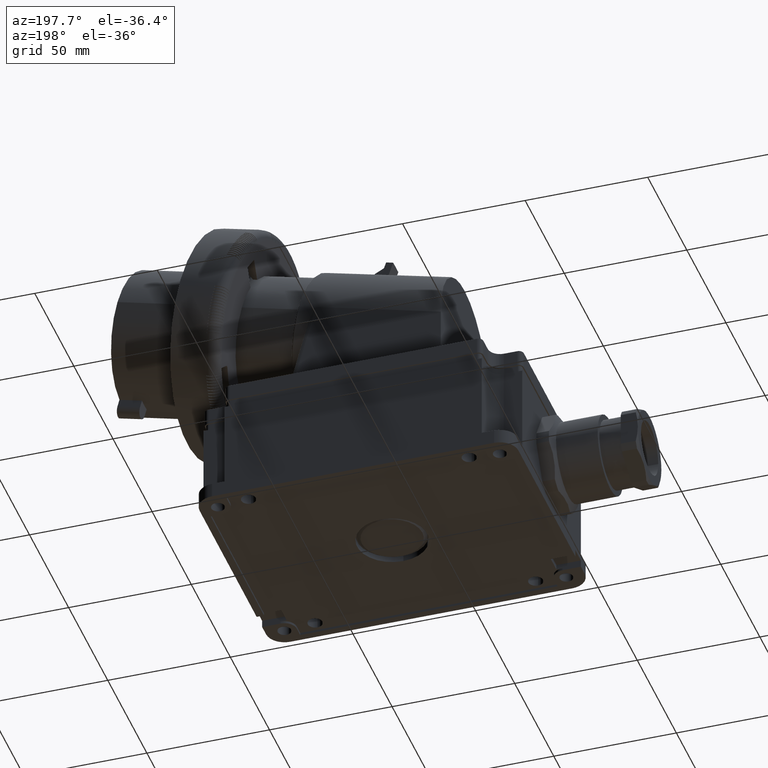
[diagram: clean part render]
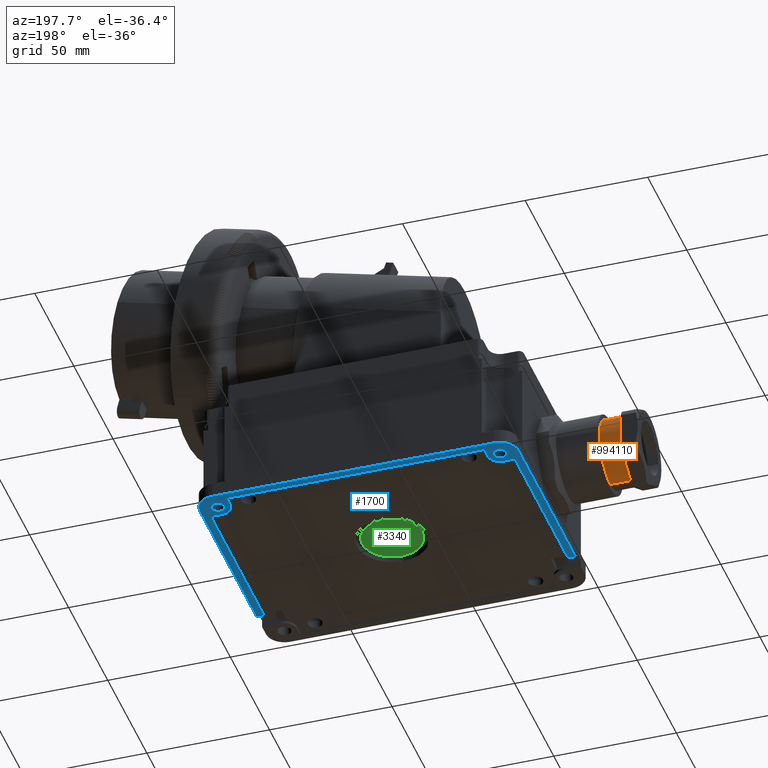
[diagram: same view with three faces highlighted in distinct colors, each labeled with its STEP entity id]
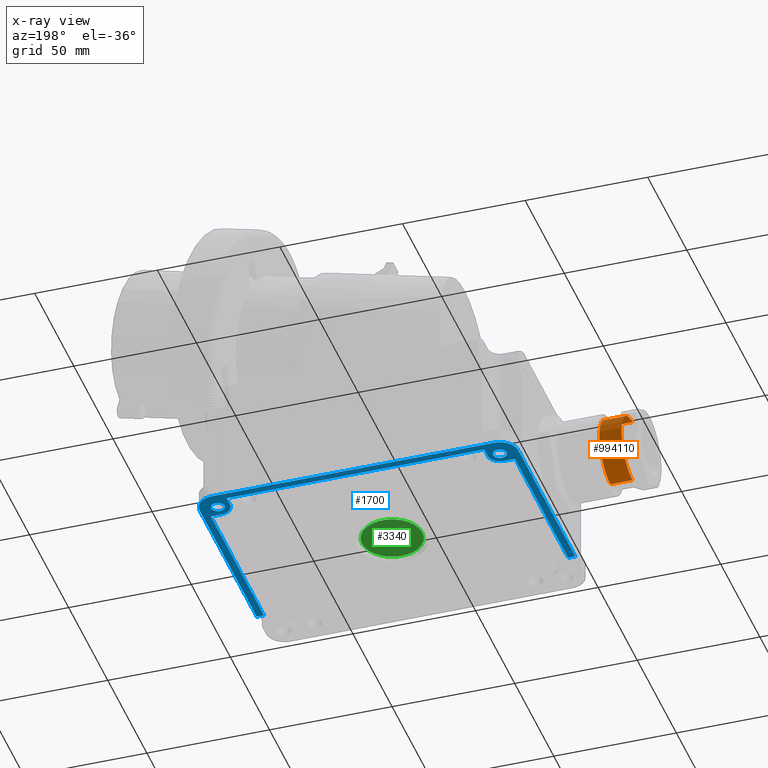
[diagram: x-ray of the same camera — body ghosted, the three highlighted faces saturated]
A machine part, auxiliary view with three faces highlighted in distinct colors.
The next image is the same camera in x-ray (body ghosted, the three faces saturated) — at least one of them is partly hidden behind the body in this view.
Their STEP definitions:

[orange] entity #994110 — the highlighted cylindrical surface (edge-blend (fillet) strip) has radius 14 mm, axis along (-1, 0, 0).
#974650=CARTESIAN_POINT('',(-20.0000000000001,47.,22.));
#974660=DIRECTION('',(-1.,1.26217744835362E-29,0.));
#974670=DIRECTION('',(0.,3.47098798297245E-29,1.));
#974680=AXIS2_PLACEMENT_3D('',#974650,#974660,#974670);
#974690=CIRCLE('',#974680,14.);
#974700=CARTESIAN_POINT('',(-20.0000000000001,47.,36.));
#974710=VERTEX_POINT('',#974700);
#974720=CARTESIAN_POINT('',(-20.0000000000001,47.,7.99999999999997));
#974730=VERTEX_POINT('',#974720);
#974740=EDGE_CURVE('',#974710,#974730,#974690,.T.);
#974860=CARTESIAN_POINT('',(4.,47.,36.));
#974870=DIRECTION('',(-1.,1.26217744835362E-29,0.));
#974880=VECTOR('',#974870,1.);
#974890=LINE('',#974860,#974880);
#974900=CARTESIAN_POINT('',(-29.,47.,36.));
#974910=VERTEX_POINT('',#974900);
#974920=EDGE_CURVE('',#974710,#974910,#974890,.T.);
#974950=CARTESIAN_POINT('',(4.,47.,7.99999999999997));
#974960=DIRECTION('',(-1.,1.26217744835362E-29,0.));
#974970=VECTOR('',#974960,1.);
#974980=LINE('',#974950,#974970);
#974990=CARTESIAN_POINT('',(-29.,47.,7.99999999999997));
#975000=VERTEX_POINT('',#974990);
#975010=EDGE_CURVE('',#974730,#975000,#974980,.T.);
#975030=CARTESIAN_POINT('',(-29.,47.,22.));
#975040=DIRECTION('',(-1.,1.26217744835362E-29,0.));
#975050=DIRECTION('',(0.,3.47098798297245E-29,1.));
#975060=AXIS2_PLACEMENT_3D('',#975030,#975040,#975050);
#975070=CIRCLE('',#975060,14.);
#975970=EDGE_CURVE('',#974910,#975000,#975070,.T.);
#994000=CARTESIAN_POINT('',(4.,47.,22.));
#994010=DIRECTION('',(-1.,1.26217744835362E-29,0.));
#994020=DIRECTION('',(0.,3.47098798297245E-29,1.));
#994030=AXIS2_PLACEMENT_3D('',#994000,#994010,#994020);
#994040=CYLINDRICAL_SURFACE('',#994030,14.);
#994050=ORIENTED_EDGE('',*,*,#975970,.F.);
#994060=ORIENTED_EDGE('',*,*,#975010,.T.);
#994070=ORIENTED_EDGE('',*,*,#974740,.T.);
#994080=ORIENTED_EDGE('',*,*,#974920,.F.);
#994090=EDGE_LOOP('',(#994080,#994070,#994060,#994050));
#994100=FACE_OUTER_BOUND('',#994090,.T.);
#994110=ADVANCED_FACE('',(#994100),#994040,.T.);

[blue] entity #1700 — the highlighted planar face has unit normal (0, 0, 1).
#10=CARTESIAN_POINT('',(0.,0.,0.));
#20=DIRECTION('',(0.,0.,1.));
#30=DIRECTION('',(1.,0.,0.));
#40=AXIS2_PLACEMENT_3D('',#10,#20,#30);
#50=PLANE('',#40);
#60=CARTESIAN_POINT('',(11.5,89.5,0.));
#70=DIRECTION('',(0.,0.,1.));
#80=DIRECTION('',(1.,0.,0.));
#90=AXIS2_PLACEMENT_3D('',#60,#70,#80);
#100=CIRCLE('',#90,2.75);
#110=CARTESIAN_POINT('',(14.25,89.5,0.));
#120=VERTEX_POINT('',#110);
#130=CARTESIAN_POINT('',(8.75,89.5,0.));
#140=VERTEX_POINT('',#130);
#150=EDGE_CURVE('',#120,#140,#100,.T.);
#160=ORIENTED_EDGE('',*,*,#150,.T.);
#170=EDGE_CURVE('',#140,#120,#100,.T.);
#180=ORIENTED_EDGE('',*,*,#170,.T.);
#190=EDGE_LOOP('',(#180,#160));
#200=FACE_BOUND('',#190,.T.);
#210=CARTESIAN_POINT('',(126.5,89.5,0.));
#220=DIRECTION('',(0.,0.,-1.));
#230=DIRECTION('',(-1.,0.,0.));
#240=AXIS2_PLACEMENT_3D('',#210,#220,#230);
#250=CIRCLE('',#240,2.75);
#260=CARTESIAN_POINT('',(123.75,89.5,0.));
#270=VERTEX_POINT('',#260);
#280=CARTESIAN_POINT('',(129.25,89.5,0.));
#290=VERTEX_POINT('',#280);
#300=EDGE_CURVE('',#270,#290,#250,.T.);
#310=ORIENTED_EDGE('',*,*,#300,.F.);
#320=EDGE_CURVE('',#290,#270,#250,.T.);
#330=ORIENTED_EDGE('',*,*,#320,.F.);
#340=EDGE_LOOP('',(#330,#310));
#350=FACE_BOUND('',#340,.T.);
#360=CARTESIAN_POINT('',(0.,16.5,0.));
#370=DIRECTION('',(1.,0.,0.));
#380=VECTOR('',#370,1.);
#390=LINE('',#360,#380);
#400=CARTESIAN_POINT('',(4.,16.5,0.));
#410=VERTEX_POINT('',#400);
#420=CARTESIAN_POINT('',(7.,16.5,0.));
#430=VERTEX_POINT('',#420);
#440=EDGE_CURVE('',#410,#430,#390,.T.);
#450=ORIENTED_EDGE('',*,*,#440,.F.);
#460=CARTESIAN_POINT('',(7.,0.,0.));
#470=DIRECTION('',(0.,-1.,0.));
#480=VECTOR('',#470,1.);
#490=LINE('',#460,#480);
#500=CARTESIAN_POINT('',(7.,84.5,0.));
#510=VERTEX_POINT('',#500);
#520=EDGE_CURVE('',#510,#430,#490,.T.);
#530=ORIENTED_EDGE('',*,*,#520,.T.);
#540=CARTESIAN_POINT('',(0.,84.5,0.));
#550=DIRECTION('',(-1.,0.,0.));
#560=VECTOR('',#550,1.);
#570=LINE('',#540,#560);
#580=CARTESIAN_POINT('',(11.5,84.5,0.));
#590=VERTEX_POINT('',#580);
#600=EDGE_CURVE('',#590,#510,#570,.T.);
#610=ORIENTED_EDGE('',*,*,#600,.T.);
#620=CARTESIAN_POINT('',(11.5,89.5,0.));
#630=DIRECTION('',(0.,0.,1.));
#640=DIRECTION('',(1.,0.,0.));
#650=AXIS2_PLACEMENT_3D('',#620,#630,#640);
#660=CIRCLE('',#650,5.);
#670=CARTESIAN_POINT('',(16.5,89.5,0.));
#680=VERTEX_POINT('',#670);
#690=EDGE_CURVE('',#590,#680,#660,.T.);
#700=ORIENTED_EDGE('',*,*,#690,.F.);
#710=CARTESIAN_POINT('',(16.5,0.,0.));
#720=DIRECTION('',(3.94745964311167E-16,-1.,0.));
#730=VECTOR('',#720,1.);
#740=LINE('',#710,#730);
#750=CARTESIAN_POINT('',(16.5,94.,0.));
#760=VERTEX_POINT('',#750);
#770=EDGE_CURVE('',#760,#680,#740,.T.);
#780=ORIENTED_EDGE('',*,*,#770,.T.);
#790=CARTESIAN_POINT('',(0.,94.,0.));
#800=DIRECTION('',(-1.,0.,0.));
#810=VECTOR('',#800,1.);
#820=LINE('',#790,#810);
#830=CARTESIAN_POINT('',(121.5,94.,0.));
#840=VERTEX_POINT('',#830);
#850=EDGE_CURVE('',#840,#760,#820,.T.);
#860=ORIENTED_EDGE('',*,*,#850,.T.);
#870=CARTESIAN_POINT('',(121.5,0.,0.));
#880=DIRECTION('',(-3.94745964311167E-16,-1.,0.));
#890=VECTOR('',#880,1.);
#900=LINE('',#870,#890);
#910=CARTESIAN_POINT('',(121.5,89.5,0.));
#920=VERTEX_POINT('',#910);
#930=EDGE_CURVE('',#840,#920,#900,.T.);
#940=ORIENTED_EDGE('',*,*,#930,.F.);
#950=CARTESIAN_POINT('',(126.5,89.5,0.));
#960=DIRECTION('',(0.,0.,-1.));
#970=DIRECTION('',(-1.,0.,0.));
#980=AXIS2_PLACEMENT_3D('',#950,#960,#970);
#990=CIRCLE('',#980,5.);
#1000=CARTESIAN_POINT('',(126.5,84.5,0.));
#1010=VERTEX_POINT('',#1000);
#1020=EDGE_CURVE('',#1010,#920,#990,.T.);
#1030=ORIENTED_EDGE('',*,*,#1020,.T.);
#1040=CARTESIAN_POINT('',(138.,84.5,0.));
#1050=DIRECTION('',(1.,0.,0.));
#1060=VECTOR('',#1050,1.);
#1070=LINE('',#1040,#1060);
#1080=CARTESIAN_POINT('',(131.,84.5,0.));
#1090=VERTEX_POINT('',#1080);
#1100=EDGE_CURVE('',#1010,#1090,#1070,.T.);
#1110=ORIENTED_EDGE('',*,*,#1100,.F.);
#1120=CARTESIAN_POINT('',(131.,0.,0.));
#1130=DIRECTION('',(0.,-1.,0.));
#1140=VECTOR('',#1130,1.);
#1150=LINE('',#1120,#1140);
#1160=CARTESIAN_POINT('',(131.,16.5,0.));
#1170=VERTEX_POINT('',#1160);
#1180=EDGE_CURVE('',#1090,#1170,#1150,.T.);
#1190=ORIENTED_EDGE('',*,*,#1180,.F.);
#1200=CARTESIAN_POINT('',(138.,16.5,0.));
#1210=DIRECTION('',(-1.,0.,0.));
#1220=VECTOR('',#1210,1.);
#1230=LINE('',#1200,#1220);
#1240=CARTESIAN_POINT('',(134.,16.5,0.));
#1250=VERTEX_POINT('',#1240);
#1260=EDGE_CURVE('',#1250,#1170,#1230,.T.);
#1270=ORIENTED_EDGE('',*,*,#1260,.T.);
#1280=CARTESIAN_POINT('',(134.,-3.,0.));
#1290=DIRECTION('',(0.,1.,0.));
#1300=VECTOR('',#1290,1.);
#1310=LINE('',#1280,#1300);
#1320=CARTESIAN_POINT('',(134.,89.5,0.));
#1330=VERTEX_POINT('',#1320);
#1340=EDGE_CURVE('',#1250,#1330,#1310,.T.);
#1350=ORIENTED_EDGE('',*,*,#1340,.F.);
#1360=CARTESIAN_POINT('',(126.5,89.5,0.));
#1370=DIRECTION('',(0.,0.,-1.));
#1380=DIRECTION('',(-1.,0.,0.));
#1390=AXIS2_PLACEMENT_3D('',#1360,#1370,#1380);
#1400=CIRCLE('',#1390,7.5);
#1410=CARTESIAN_POINT('',(126.5,97.,0.));
#1420=VERTEX_POINT('',#1410);
#1430=EDGE_CURVE('',#1420,#1330,#1400,.T.);
#1440=ORIENTED_EDGE('',*,*,#1430,.T.);
#1450=CARTESIAN_POINT('',(4.,97.,0.));
#1460=DIRECTION('',(1.,0.,0.));
#1470=VECTOR('',#1460,1.);
#1480=LINE('',#1450,#1470);
#1490=CARTESIAN_POINT('',(11.5,97.,0.));
#1500=VERTEX_POINT('',#1490);
#1510=EDGE_CURVE('',#1500,#1420,#1480,.T.);
#1520=ORIENTED_EDGE('',*,*,#1510,.T.);
#1530=CARTESIAN_POINT('',(11.5,89.5,0.));
#1540=DIRECTION('',(0.,0.,1.));
#1550=DIRECTION('',(1.,0.,0.));
#1560=AXIS2_PLACEMENT_3D('',#1530,#1540,#1550);
#1570=CIRCLE('',#1560,7.5);
#1580=CARTESIAN_POINT('',(4.,89.5,0.));
#1590=VERTEX_POINT('',#1580);
#1600=EDGE_CURVE('',#1500,#1590,#1570,.T.);
#1610=ORIENTED_EDGE('',*,*,#1600,.F.);
#1620=CARTESIAN_POINT('',(4.,-3.,0.));
#1630=DIRECTION('',(0.,1.,0.));
#1640=VECTOR('',#1630,1.);
#1650=LINE('',#1620,#1640);
#1660=EDGE_CURVE('',#410,#1590,#1650,.T.);
#1670=ORIENTED_EDGE('',*,*,#1660,.T.);
#1680=EDGE_LOOP('',(#1670,#1610,#1520,#1440,#1350,#1270,#1190,#1110,
#1030,#940,#860,#780,#700,#610,#530,#450));
#1690=FACE_OUTER_BOUND('',#1680,.T.);
#1700=ADVANCED_FACE('',(#200,#350,#1690),#50,.F.);

[green] entity #3340 — the highlighted planar face has unit normal (0, 0, 1).
#3100=CARTESIAN_POINT('',(69.,47.,2.));
#3110=DIRECTION('',(0.,0.,1.));
#3120=DIRECTION('',(1.,0.,0.));
#3130=AXIS2_PLACEMENT_3D('',#3100,#3110,#3120);
#3140=PLANE('',#3130);
#3150=CARTESIAN_POINT('',(69.,47.,2.));
#3160=DIRECTION('',(0.,0.,-1.));
#3170=DIRECTION('',(-1.,0.,0.));
#3180=AXIS2_PLACEMENT_3D('',#3150,#3160,#3170);
#3190=CIRCLE('',#3180,12.3);
#3200=CARTESIAN_POINT('',(56.7,47.,2.));
#3210=VERTEX_POINT('',#3200);
#3220=CARTESIAN_POINT('',(81.3,47.,2.));
#3230=VERTEX_POINT('',#3220);
#3240=EDGE_CURVE('',#3210,#3230,#3190,.T.);
#3250=ORIENTED_EDGE('',*,*,#3240,.T.);
#3260=CARTESIAN_POINT('',(69.,34.7,2.));
#3270=VERTEX_POINT('',#3260);
#3280=EDGE_CURVE('',#3270,#3210,#3190,.T.);
#3290=ORIENTED_EDGE('',*,*,#3280,.T.);
#3300=EDGE_CURVE('',#3230,#3270,#3190,.T.);
#3310=ORIENTED_EDGE('',*,*,#3300,.T.);
#3320=EDGE_LOOP('',(#3310,#3290,#3250));
#3330=FACE_OUTER_BOUND('',#3320,.T.);
#3340=ADVANCED_FACE('',(#3330),#3140,.F.);